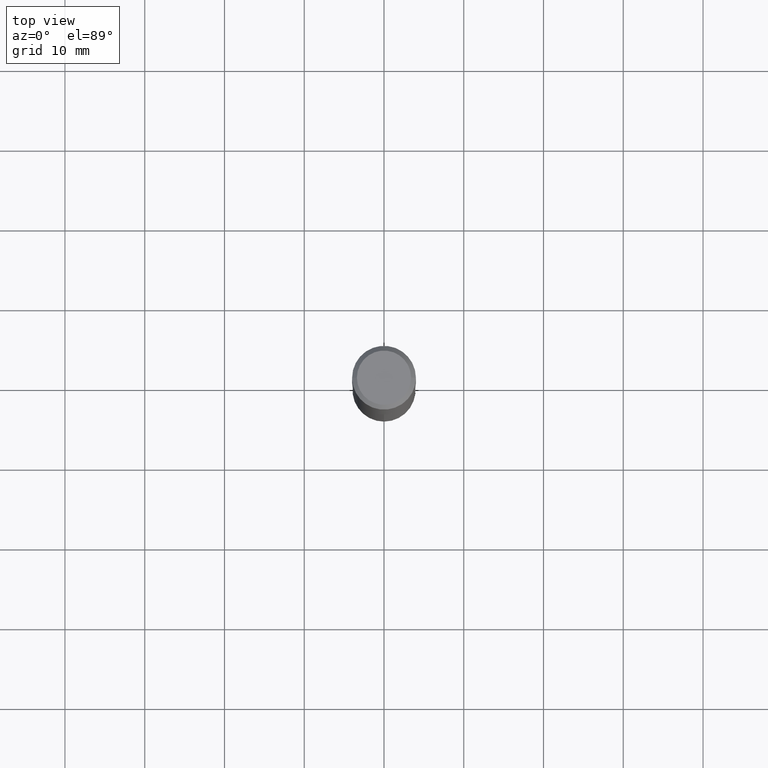
[diagram: clean part render]
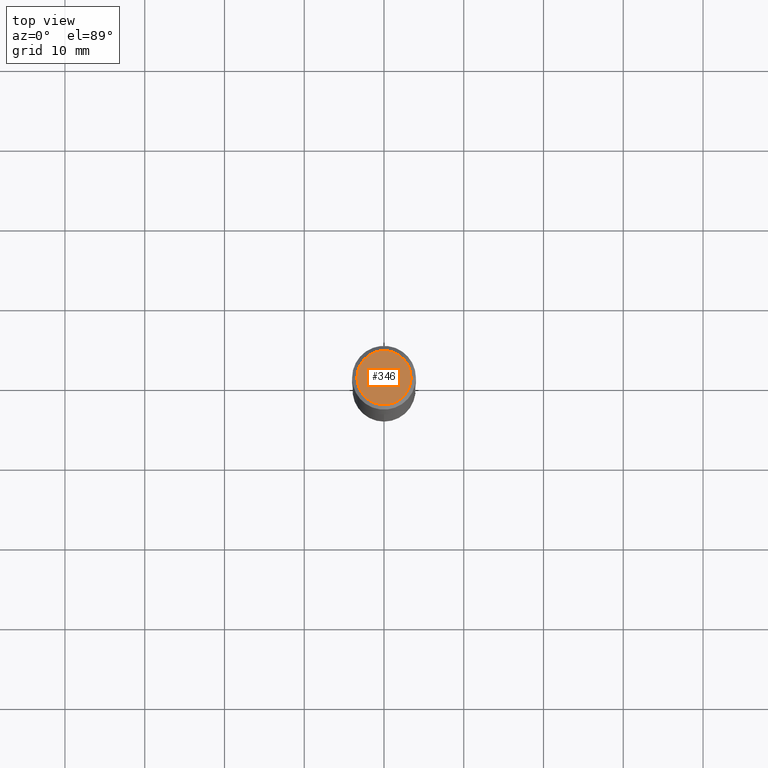
[diagram: same view with one face highlighted and labeled with its STEP entity id]
A machine part, top view. The second image highlights one B-rep face of the part: STEP entity #346.
In plain terms, the highlighted planar face has unit normal (0, -0, -1).
Its self-contained STEP definition (entity closure, byte-faithful):
#42 = AXIS2_PLACEMENT_3D ( 'NONE', #91, #52, #314 ) ;
#47 = CARTESIAN_POINT ( 'NONE',  ( -0.1338749999999999940, 9.760872517903331886E-16, 4.101342130337800673E-18 ) ) ;
#52 = DIRECTION ( 'NONE',  ( -2.445468806185136597E-29, 3.491481338843145583E-15, 1.000000000000000000 ) ) ;
#54 = CARTESIAN_POINT ( 'NONE',  ( -1.002970424325032604E-46, 1.431975951230895391E-32, 4.101342130344482109E-18 ) ) ;
#83 = DIRECTION ( 'NONE',  ( -1.000000000000000000, 6.982962677686265922E-15, -4.876176775795935793E-29 ) ) ;
#91 = CARTESIAN_POINT ( 'NONE',  ( -1.002970424325032604E-46, 1.431975951230895391E-32, 4.101342130344482109E-18 ) ) ;
#92 = AXIS2_PLACEMENT_3D ( 'NONE', #392, #119, #83 ) ;
#98 = CARTESIAN_POINT ( 'NONE',  ( 0.1338749999999999940, -1.040731925365424925E-15, 4.101342130351390035E-18 ) ) ;
#119 = DIRECTION ( 'NONE',  ( 2.438088387897960049E-29, -3.491481338843145188E-15, -1.000000000000000000 ) ) ;
#123 = EDGE_CURVE ( 'NONE', #488, #215, #272, .T. ) ;
#198 = DIRECTION ( 'NONE',  ( -2.445468806185136597E-29, 3.491481338843145583E-15, 1.000000000000000000 ) ) ;
#215 = VERTEX_POINT ( 'NONE', #98 ) ;
#227 = PLANE ( 'NONE',  #92 ) ;
#248 = EDGE_CURVE ( 'NONE', #215, #488, #251, .T. ) ;
#251 = CIRCLE ( 'NONE', #42, 0.1338749999999999940 ) ;
#271 = DIRECTION ( 'NONE',  ( 1.000000000000000000, -6.982962677686266711E-15, 4.876170806578254279E-29 ) ) ;
#272 = CIRCLE ( 'NONE', #408, 0.1338749999999999940 ) ;
#314 = DIRECTION ( 'NONE',  ( 1.000000000000000000, -6.982962677686266711E-15, 4.876170806578254279E-29 ) ) ;
#334 = ORIENTED_EDGE ( 'NONE', *, *, #123, .T. ) ;
#346 = ADVANCED_FACE ( 'NONE', ( #458 ), #227, .F. ) ;
#392 = CARTESIAN_POINT ( 'NONE',  ( -5.014852121625163022E-47, 7.159879756154476955E-33, 2.050671065172241055E-18 ) ) ;
#408 = AXIS2_PLACEMENT_3D ( 'NONE', #54, #198, #271 ) ;
#454 = EDGE_LOOP ( 'NONE', ( #334, #485 ) ) ;
#458 = FACE_OUTER_BOUND ( 'NONE', #454, .T. ) ;
#485 = ORIENTED_EDGE ( 'NONE', *, *, #248, .T. ) ;
#488 = VERTEX_POINT ( 'NONE', #47 ) ;